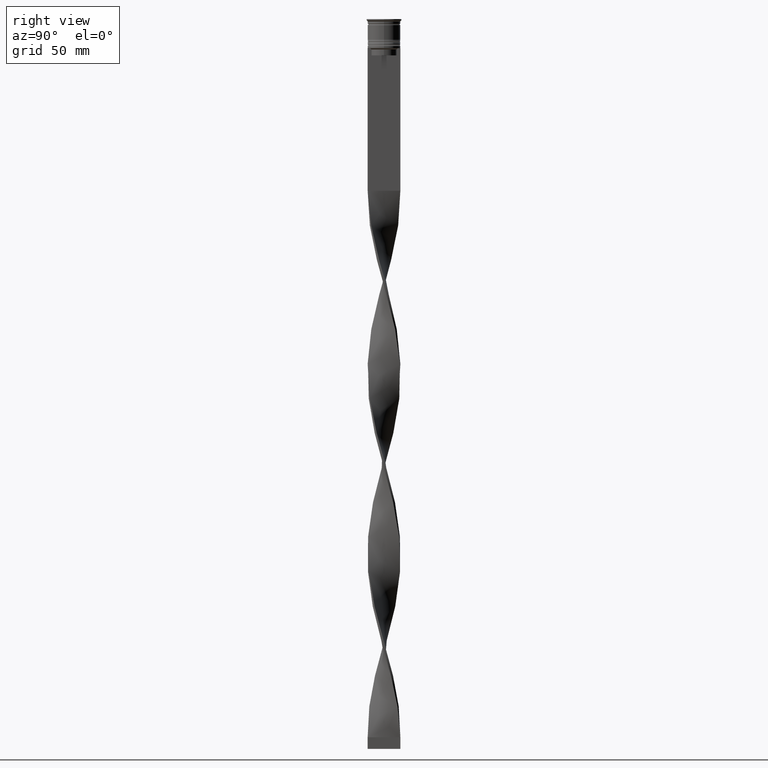
[diagram: clean part render]
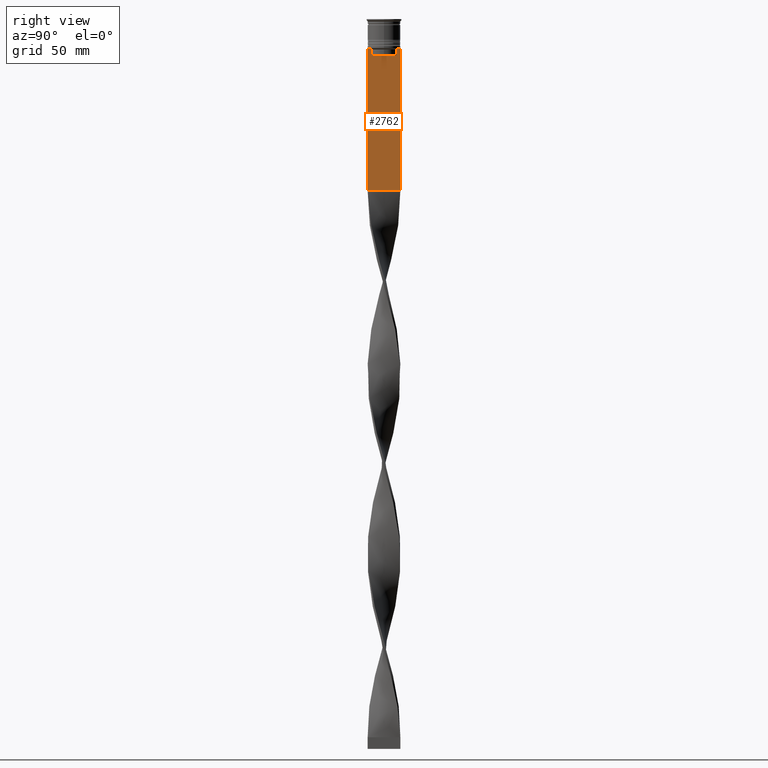
[diagram: same view with one face highlighted and labeled with its STEP entity id]
A machine part, right view. The second image highlights one B-rep face of the part: STEP entity #2762.
In plain terms, the highlighted planar face has unit normal (-1, 0, 0).
Its self-contained STEP definition (entity closure, byte-faithful):
#71 = DIRECTION ( 'NONE',  ( 0.000000000000000000, -1.000000000000000000, 0.000000000000000000 ) ) ;
#78 = ORIENTED_EDGE ( 'NONE', *, *, #3391, .T. ) ;
#91 = LINE ( 'NONE', #1354, #2234 ) ;
#205 = VERTEX_POINT ( 'NONE', #1502 ) ;
#382 = VECTOR ( 'NONE', #2770, 1000.000000000000000 ) ;
#431 = CARTESIAN_POINT ( 'NONE',  ( 0.5000000000000000000, -5.878775382679629402, -12.50000000000000000 ) ) ;
#535 = CARTESIAN_POINT ( 'NONE',  ( 0.5000000000000000000, -5.544156999454441959, -12.83336396790503642 ) ) ;
#537 = CARTESIAN_POINT ( 'NONE',  ( 0.5000000000000000000, 6.881860213634102053, -12.50000000000000000 ) ) ;
#585 = CARTESIAN_POINT ( 'NONE',  ( 0.5000000000000000000, 5.376802023508029826, -13.00000000000000178 ) ) ;
#624 = LINE ( 'NONE', #1938, #2155 ) ;
#675 = DIRECTION ( 'NONE',  ( 0.000000000000000000, 0.000000000000000000, -1.000000000000000000 ) ) ;
#689 = ORIENTED_EDGE ( 'NONE', *, *, #2178, .T. ) ;
#710 = EDGE_CURVE ( 'NONE', #2210, #1378, #3405, .T. ) ;
#740 = CARTESIAN_POINT ( 'NONE',  ( 0.5000000000000000000, 7.000000000000002665, 1.535668847618198329 ) ) ;
#811 = EDGE_CURVE ( 'NONE', #3912, #3906, #2096, .T. ) ;
#935 = ORIENTED_EDGE ( 'NONE', *, *, #811, .T. ) ;
#951 = ORIENTED_EDGE ( 'NONE', *, *, #3621, .T. ) ;
#980 = EDGE_CURVE ( 'NONE', #4098, #2723, #2600, .T. ) ;
#1012 = EDGE_CURVE ( 'NONE', #2164, #205, #624, .T. ) ;
#1069 = CARTESIAN_POINT ( 'NONE',  ( 0.5000000000000000000, -6.999999999999997335, 1.535668847618198329 ) ) ;
#1088 = DIRECTION ( 'NONE',  ( 0.000000000000000000, 0.000000000000000000, -1.000000000000000000 ) ) ;
#1110 = CARTESIAN_POINT ( 'NONE',  ( 0.5000000000000000000, 5.878775382679629402, -12.50000000000000000 ) ) ;
#1131 = ORIENTED_EDGE ( 'NONE', *, *, #1012, .T. ) ;
#1163 = VECTOR ( 'NONE', #1669, 1000.000000000000000 ) ;
#1197 = CARTESIAN_POINT ( 'NONE',  ( 0.5000000000000000000, 5.878775382679629402, -12.50000000000000000 ) ) ;
#1207 = CARTESIAN_POINT ( 'NONE',  ( 0.5000000000000000000, 5.376802023508029826, -15.50000000000000000 ) ) ;
#1210 = VERTEX_POINT ( 'NONE', #537 ) ;
#1242 = DIRECTION ( 'NONE',  ( 0.000000000000000000, 1.000000000000000000, 0.000000000000000000 ) ) ;
#1314 = CARTESIAN_POINT ( 'NONE',  ( 0.5000000000000000000, -6.881860213634102053, -12.50000000000000000 ) ) ;
#1328 = EDGE_LOOP ( 'NONE', ( #3355, #1373, #3524, #78, #1131, #951, #4023, #689, #2662, #935, #3340, #3083 ) ) ;
#1339 = DIRECTION ( 'NONE',  ( 0.000000000000000000, -1.000000000000000000, 0.000000000000000000 ) ) ;
#1354 = CARTESIAN_POINT ( 'NONE',  ( 0.5000000000000000000, 5.400000000000003908, -15.50000000000000000 ) ) ;
#1362 = VECTOR ( 'NONE', #1088, 1000.000000000000000 ) ;
#1364 = VECTOR ( 'NONE', #675, 1000.000000000000000 ) ;
#1373 = ORIENTED_EDGE ( 'NONE', *, *, #710, .T. ) ;
#1378 = VERTEX_POINT ( 'NONE', #1853 ) ;
#1399 = CARTESIAN_POINT ( 'NONE',  ( 0.5000000000000000000, -6.999999999999997335, -12.50000000000000000 ) ) ;
#1400 = CARTESIAN_POINT ( 'NONE',  ( 0.5000000000000000000, -6.999999999999997335, -12.50000000000000000 ) ) ;
#1502 = CARTESIAN_POINT ( 'NONE',  ( 0.5000000000000000000, -5.376802023508029826, -13.00000000000000178 ) ) ;
#1506 = LINE ( 'NONE', #2710, #382 ) ;
#1635 = CARTESIAN_POINT ( 'NONE',  ( 0.5000000000000000000, -6.999999999999997335, -73.50000000000001421 ) ) ;
#1669 = DIRECTION ( 'NONE',  ( 0.000000000000000000, 0.000000000000000000, -1.000000000000000000 ) ) ;
#1730 = CARTESIAN_POINT ( 'NONE',  ( 0.5000000000000000000, -5.878775382679629402, -12.50000000000000000 ) ) ;
#1759 = VECTOR ( 'NONE', #1339, 1000.000000000000000 ) ;
#1853 = CARTESIAN_POINT ( 'NONE',  ( 0.5000000000000000000, 5.376802023508029826, -13.00000000000000178 ) ) ;
#1938 = CARTESIAN_POINT ( 'NONE',  ( 0.5000000000000000000, -5.376802023508029826, 0.000000000000000000 ) ) ;
#1996 = DIRECTION ( 'NONE',  ( 0.000000000000000000, 0.000000000000000000, 1.000000000000000000 ) ) ;
#2002 = LINE ( 'NONE', #1400, #1759 ) ;
#2024 = EDGE_CURVE ( 'NONE', #2476, #3912, #3917, .T. ) ;
#2065 = CARTESIAN_POINT ( 'NONE',  ( 0.5000000000000000000, -6.999999999999997335, -12.50000000000000000 ) ) ;
#2096 = LINE ( 'NONE', #4088, #2419 ) ;
#2150 = EDGE_CURVE ( 'NONE', #3415, #3906, #3578, .T. ) ;
#2155 = VECTOR ( 'NONE', #2272, 1000.000000000000000 ) ;
#2164 = VERTEX_POINT ( 'NONE', #3622 ) ;
#2178 = EDGE_CURVE ( 'NONE', #2723, #2476, #2002, .T. ) ;
#2208 = CARTESIAN_POINT ( 'NONE',  ( 0.5000000000000000000, -6.999999999999997335, -12.50000000000000000 ) ) ;
#2210 = VERTEX_POINT ( 'NONE', #1110 ) ;
#2234 = VECTOR ( 'NONE', #71, 1000.000000000000000 ) ;
#2272 = DIRECTION ( 'NONE',  ( -0.000000000000000000, -0.000000000000000000, 1.000000000000000000 ) ) ;
#2332 = EDGE_CURVE ( 'NONE', #3415, #1210, #1506, .T. ) ;
#2390 = EDGE_CURVE ( 'NONE', #1210, #2210, #3682, .T. ) ;
#2413 = VERTEX_POINT ( 'NONE', #1207 ) ;
#2419 = VECTOR ( 'NONE', #1242, 1000.000000000000000 ) ;
#2476 = VERTEX_POINT ( 'NONE', #2208 ) ;
#2600 = LINE ( 'NONE', #1399, #2873 ) ;
#2607 = B_SPLINE_CURVE_WITH_KNOTS ( 'NONE', 3,
 ( #2724, #535, #4016, #1730 ),
 .UNSPECIFIED., .F., .F.,
 ( 4, 4 ),
 ( 0.02539176325380714666, 0.02610162431828674801 ),
 .UNSPECIFIED. ) ;
#2622 = DIRECTION ( 'NONE',  ( 0.000000000000000000, -1.000000000000000000, 0.000000000000000000 ) ) ;
#2662 = ORIENTED_EDGE ( 'NONE', *, *, #2024, .T. ) ;
#2710 = CARTESIAN_POINT ( 'NONE',  ( 0.5000000000000000000, -6.999999999999997335, -12.50000000000000000 ) ) ;
#2723 = VERTEX_POINT ( 'NONE', #1314 ) ;
#2724 = CARTESIAN_POINT ( 'NONE',  ( 0.5000000000000000000, -5.376802023508029826, -13.00000000000000178 ) ) ;
#2762 = ADVANCED_FACE ( 'NONE', ( #3218 ), #3573, .F. ) ;
#2770 = DIRECTION ( 'NONE',  ( 0.000000000000000000, -1.000000000000000000, 0.000000000000000000 ) ) ;
#2812 = EDGE_CURVE ( 'NONE', #1378, #2413, #3528, .T. ) ;
#2873 = VECTOR ( 'NONE', #2622, 1000.000000000000000 ) ;
#3083 = ORIENTED_EDGE ( 'NONE', *, *, #2332, .T. ) ;
#3086 = VECTOR ( 'NONE', #3349, 1000.000000000000000 ) ;
#3149 = AXIS2_PLACEMENT_3D ( 'NONE', #3193, #3846, #1996 ) ;
#3193 = CARTESIAN_POINT ( 'NONE',  ( 0.5000000000000000000, -6.999999999999997335, 1.535668847618198329 ) ) ;
#3218 = FACE_OUTER_BOUND ( 'NONE', #1328, .T. ) ;
#3230 = CARTESIAN_POINT ( 'NONE',  ( 0.5000000000000000000, 7.000000000000002665, -73.50000000000001421 ) ) ;
#3340 = ORIENTED_EDGE ( 'NONE', *, *, #2150, .F. ) ;
#3349 = DIRECTION ( 'NONE',  ( 0.000000000000000000, -1.000000000000000000, 0.000000000000000000 ) ) ;
#3355 = ORIENTED_EDGE ( 'NONE', *, *, #2390, .T. ) ;
#3391 = EDGE_CURVE ( 'NONE', #2413, #2164, #91, .T. ) ;
#3394 = CARTESIAN_POINT ( 'NONE',  ( 0.5000000000000000000, 5.711478846560141598, -12.66669470477064685 ) ) ;
#3405 = B_SPLINE_CURVE_WITH_KNOTS ( 'NONE', 3,
 ( #1197, #3394, #3437, #585 ),
 .UNSPECIFIED., .F., .F.,
 ( 4, 4 ),
 ( 0.01003009312103698807, 0.01073859663834952557 ),
 .UNSPECIFIED. ) ;
#3415 = VERTEX_POINT ( 'NONE', #3554 ) ;
#3437 = CARTESIAN_POINT ( 'NONE',  ( 0.5000000000000000000, 5.544156989057553275, -12.83336397825725861 ) ) ;
#3509 = CARTESIAN_POINT ( 'NONE',  ( 0.5000000000000000000, 5.376802023508029826, 0.000000000000000000 ) ) ;
#3524 = ORIENTED_EDGE ( 'NONE', *, *, #2812, .T. ) ;
#3528 = LINE ( 'NONE', #3509, #1364 ) ;
#3554 = CARTESIAN_POINT ( 'NONE',  ( 0.5000000000000000000, 7.000000000000002665, -12.50000000000000000 ) ) ;
#3573 = PLANE ( 'NONE',  #3149 ) ;
#3578 = LINE ( 'NONE', #740, #1362 ) ;
#3621 = EDGE_CURVE ( 'NONE', #205, #4098, #2607, .T. ) ;
#3622 = CARTESIAN_POINT ( 'NONE',  ( 0.5000000000000000000, -5.376802023508029826, -15.50000000000000000 ) ) ;
#3682 = LINE ( 'NONE', #2065, #3086 ) ;
#3846 = DIRECTION ( 'NONE',  ( -1.000000000000000000, 0.000000000000000000, 0.000000000000000000 ) ) ;
#3906 = VERTEX_POINT ( 'NONE', #3230 ) ;
#3912 = VERTEX_POINT ( 'NONE', #1635 ) ;
#3917 = LINE ( 'NONE', #1069, #1163 ) ;
#4016 = CARTESIAN_POINT ( 'NONE',  ( 0.5000000000000000000, -5.711478856069293286, -12.66669469529570335 ) ) ;
#4023 = ORIENTED_EDGE ( 'NONE', *, *, #980, .T. ) ;
#4088 = CARTESIAN_POINT ( 'NONE',  ( 0.5000000000000000000, -6.999999999999997335, -73.50000000000001421 ) ) ;
#4098 = VERTEX_POINT ( 'NONE', #431 ) ;